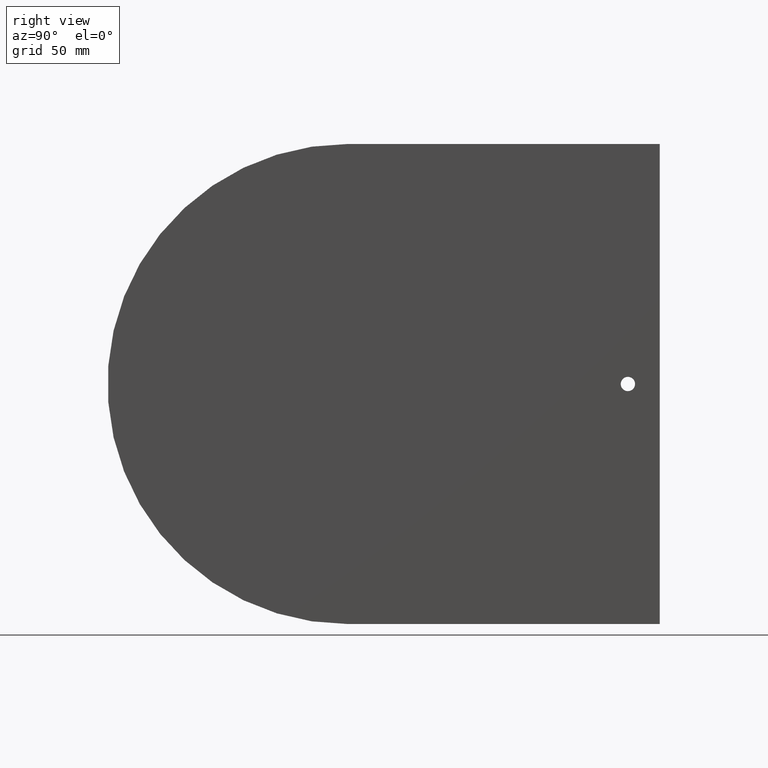
[diagram: clean part render]
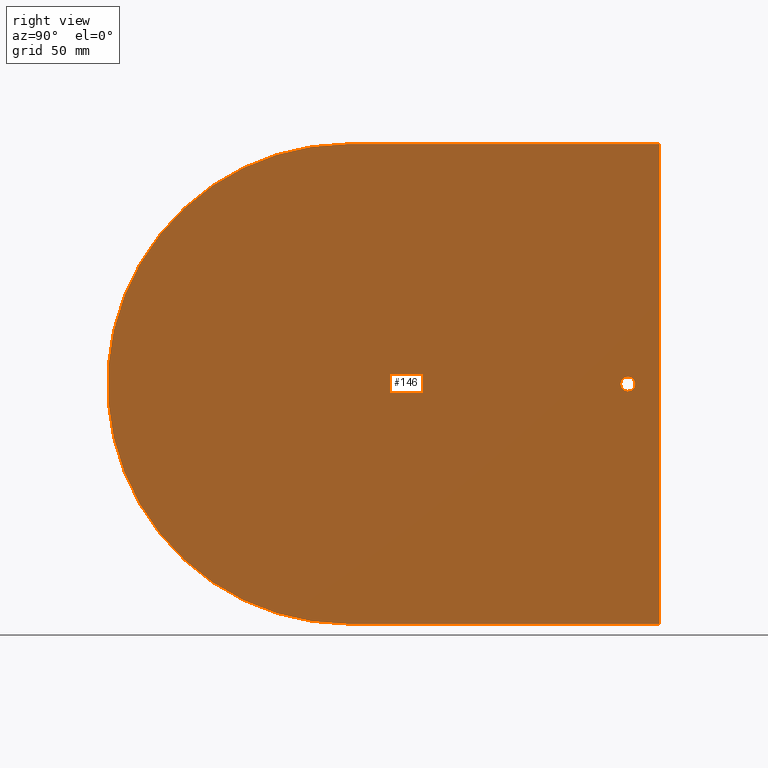
[diagram: same view with one face highlighted and labeled with its STEP entity id]
A machine part, right view. The second image highlights one B-rep face of the part: STEP entity #146.
In plain terms, the highlighted planar face has unit normal (1, 0, 0).
Its self-contained STEP definition (entity closure, byte-faithful):
#2 = EDGE_CURVE ( 'NONE', #3, #73, #139, .T. ) ;
#3 = VERTEX_POINT ( 'NONE', #135 ) ;
#12 = EDGE_CURVE ( 'NONE', #13, #14, #119, .T. ) ;
#13 = VERTEX_POINT ( 'NONE', #115 ) ;
#14 = VERTEX_POINT ( 'NONE', #114 ) ;
#29 = VERTEX_POINT ( 'NONE', #49 ) ;
#31 = EDGE_CURVE ( 'NONE', #13, #73, #48, .T. ) ;
#32 = ORIENTED_EDGE ( 'NONE', *, *, #12, .T. ) ;
#33 = ORIENTED_EDGE ( 'NONE', *, *, #31, .F. ) ;
#38 = CARTESIAN_POINT ( 'NONE',  ( 0.1875000000000000300, 5.500000000000000000, -0.1406250000000001400 ) ) ;
#39 = DIRECTION ( 'NONE',  ( 0.0000000000000000000, 0.0000000000000000000, -1.000000000000000000 ) ) ;
#40 = DIRECTION ( 'NONE',  ( 1.000000000000000000, 0.0000000000000000000, 0.0000000000000000000 ) ) ;
#41 = CARTESIAN_POINT ( 'NONE',  ( 0.1875000000000000300, 5.500000000000000000, 0.0000000000000000000 ) ) ;
#42 = AXIS2_PLACEMENT_3D ( 'NONE', #41, #40, #39 ) ;
#43 = CIRCLE ( 'NONE', #42, 0.1406250000000001400 ) ;
#44 = DIRECTION ( 'NONE',  ( 0.0000000000000000000, 0.0000000000000000000, -1.000000000000000000 ) ) ;
#45 = DIRECTION ( 'NONE',  ( -1.000000000000000000, -0.0000000000000000000, -0.0000000000000000000 ) ) ;
#46 = CARTESIAN_POINT ( 'NONE',  ( 0.1875000000000000300, 0.0000000000000000000, 0.0000000000000000000 ) ) ;
#47 = AXIS2_PLACEMENT_3D ( 'NONE', #46, #45, #44 ) ;
#48 = CIRCLE ( 'NONE', #47, 4.709374999999999600 ) ;
#49 = CARTESIAN_POINT ( 'NONE',  ( 0.1875000000000000300, 5.500000000000000000, 0.1406250000000001400 ) ) ;
#64 = EDGE_CURVE ( 'NONE', #29, #65, #43, .T. ) ;
#65 = VERTEX_POINT ( 'NONE', #38 ) ;
#73 = VERTEX_POINT ( 'NONE', #314 ) ;
#93 = ORIENTED_EDGE ( 'NONE', *, *, #2, .T. ) ;
#99 = ORIENTED_EDGE ( 'NONE', *, *, #144, .T. ) ;
#100 = ORIENTED_EDGE ( 'NONE', *, *, #64, .F. ) ;
#101 = EDGE_LOOP ( 'NONE', ( #33, #32, #99, #93 ) ) ;
#114 = CARTESIAN_POINT ( 'NONE',  ( 0.1875000000000000300, 6.125000000000000000, -4.709374999999999600 ) ) ;
#115 = CARTESIAN_POINT ( 'NONE',  ( 0.1875000000000000300, 0.0000000000000000000, -4.709374999999999600 ) ) ;
#116 = DIRECTION ( 'NONE',  ( -0.0000000000000000000, 1.000000000000000000, 4.460159989655940100E-017 ) ) ;
#117 = VECTOR ( 'NONE', #116, 39.37007874015748100 ) ;
#118 = CARTESIAN_POINT ( 'NONE',  ( 0.1875000000000000300, 6.125000000000000000, -4.709374999999999600 ) ) ;
#119 = LINE ( 'NONE', #118, #117 ) ;
#135 = CARTESIAN_POINT ( 'NONE',  ( 0.1875000000000000300, 6.125000000000000000, 4.709374999999999600 ) ) ;
#136 = DIRECTION ( 'NONE',  ( 0.0000000000000000000, -1.000000000000000000, -1.338047996896781900E-016 ) ) ;
#137 = VECTOR ( 'NONE', #136, 39.37007874015748100 ) ;
#138 = CARTESIAN_POINT ( 'NONE',  ( 0.1875000000000000300, 6.125000000000000000, 4.709374999999999600 ) ) ;
#139 = LINE ( 'NONE', #138, #137 ) ;
#144 = EDGE_CURVE ( 'NONE', #14, #3, #298, .T. ) ;
#146 = ADVANCED_FACE ( 'NONE', ( #294, #293 ), #292, .T. ) ;
#147 = EDGE_LOOP ( 'NONE', ( #148, #100 ) ) ;
#148 = ORIENTED_EDGE ( 'NONE', *, *, #149, .F. ) ;
#149 = EDGE_CURVE ( 'NONE', #65, #29, #246, .T. ) ;
#240 = DIRECTION ( 'NONE',  ( 0.0000000000000000000, 0.0000000000000000000, -1.000000000000000000 ) ) ;
#241 = DIRECTION ( 'NONE',  ( 1.000000000000000000, 0.0000000000000000000, 0.0000000000000000000 ) ) ;
#242 = CARTESIAN_POINT ( 'NONE',  ( 0.1875000000000000300, 5.500000000000000000, 0.0000000000000000000 ) ) ;
#243 = AXIS2_PLACEMENT_3D ( 'NONE', #242, #241, #240 ) ;
#244 = DIRECTION ( 'NONE',  ( 0.0000000000000000000, 0.0000000000000000000, -1.000000000000000000 ) ) ;
#245 = DIRECTION ( 'NONE',  ( 1.000000000000000000, 0.0000000000000000000, 0.0000000000000000000 ) ) ;
#246 = CIRCLE ( 'NONE', #243, 0.1406250000000001400 ) ;
#247 = CARTESIAN_POINT ( 'NONE',  ( 0.1875000000000000300, -6.125000000000000000, 4.709374999999997900 ) ) ;
#248 = AXIS2_PLACEMENT_3D ( 'NONE', #247, #245, #244 ) ;
#292 = PLANE ( 'NONE',  #248 ) ;
#293 = FACE_OUTER_BOUND ( 'NONE', #101, .T. ) ;
#294 = FACE_BOUND ( 'NONE', #147, .T. ) ;
#295 = DIRECTION ( 'NONE',  ( -0.0000000000000000000, -0.0000000000000000000, 1.000000000000000000 ) ) ;
#296 = VECTOR ( 'NONE', #295, 39.37007874015748100 ) ;
#297 = CARTESIAN_POINT ( 'NONE',  ( 0.1875000000000000300, 6.125000000000000000, 4.709374999999999600 ) ) ;
#298 = LINE ( 'NONE', #297, #296 ) ;
#314 = CARTESIAN_POINT ( 'NONE',  ( 0.1875000000000000300, 0.0000000000000000000, 4.709374999999999600 ) ) ;